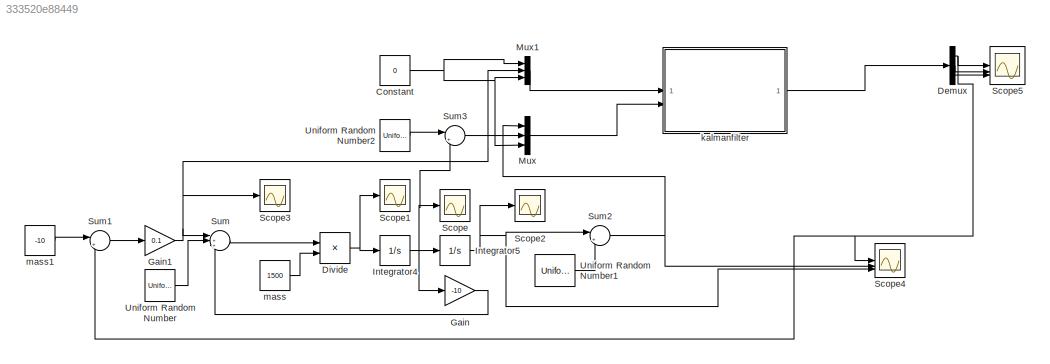
MODEL slx_333520e88449
KIND model
CONFIG AbsTol = auto
CONFIG EnableMultiTasking = off
CONFIG FixedStep = auto
CONFIG MaxStep = auto
CONFIG MinStep = auto
CONFIG RelTol = 1e-3
CONFIG SampleTimeConstraint = Unconstrained
CONFIG SolverName = VariableStepAuto
CONFIG StartTime = 0.0
CONFIG StopTime = 1000.0
BLOCK [Constant] Constant
  Value = 0
BLOCK [Demux] Demux
  Outputs = 3
BLOCK [Product] Divide
  Inputs = */
BLOCK [Gain] Gain
  Gain = -10
BLOCK [Gain] Gain1
  Gain = 0.1
BLOCK [Integrator] Integrator4
  InitialCondition = 0.2
BLOCK [Integrator] Integrator5
BLOCK [Mux] Mux
  DisplayOption = bar
  Inputs = 3
BLOCK [Mux] Mux1
  DisplayOption = bar
  Inputs = 3
BLOCK [Scope] Scope
  Floating = off
  NumInputPorts = 1
  ScopeSpecificationString = Simulink.scopes.TimeScopeBlockCfg('CurrentConfiguration', extmgr.ConfigurationSet(extmgr.Configuration('Core','General UI',true),extmgr.Configuration('Core','Source UI',true),extmgr.Configuration('Sources','WiredSimulink',true),extmgr.Configuration('Visuals','Time Domain',true,'SerializedDisplays',{struct('MinYLimReal','-0.06001','MaxYLimReal','0.02205','YLabelReal','','MinYLimMag','0.00000','MaxY...<+1483ch>
BLOCK [Scope] Scope1
  Floating = off
  NumInputPorts = 1
  ScopeSpecificationString = Simulink.scopes.TimeScopeBlockCfg('CurrentConfiguration', extmgr.ConfigurationSet(extmgr.Configuration('Core','General UI',true),extmgr.Configuration('Core','Source UI',true),extmgr.Configuration('Sources','WiredSimulink',true,'DataLoggingVariableName','ScopeData1'),extmgr.Configuration('Visuals','Time Domain',true,'SerializedDisplays',{struct('MinYLimReal','-0.00375','MaxYLimReal','0.00041','YLab...<+1483ch>
BLOCK [Scope] Scope2
  Floating = off
  NumInputPorts = 1
  ScopeSpecificationString = Simulink.scopes.TimeScopeBlockCfg('CurrentConfiguration', extmgr.ConfigurationSet(extmgr.Configuration('Core','General UI',true),extmgr.Configuration('Core','Source UI',true),extmgr.Configuration('Sources','WiredSimulink',true,'DataLoggingVariableName','ScopeData2'),extmgr.Configuration('Visuals','Time Domain',true,'SerializedDisplays',{struct('MinYLimReal','-9.36307','MaxYLimReal','84.26762','YLa...<+1492ch>
BLOCK [Scope] Scope3
  Floating = off
  NumInputPorts = 1
  ScopeSpecificationString = Simulink.scopes.TimeScopeBlockCfg('CurrentConfiguration', extmgr.ConfigurationSet(extmgr.Configuration('Core','General UI',true),extmgr.Configuration('Core','Source UI',true),extmgr.Configuration('Sources','WiredSimulink',true,'DataLoggingVariableName','ScopeData3'),extmgr.Configuration('Visuals','Time Domain',true,'SerializedDisplays',{struct('MinYLimReal','-1.38774','MaxYLimReal','0.65791','YLab...<+1504ch>
BLOCK [Scope] Scope4
  Floating = off
  NumInputPorts = 3
  ScopeSpecificationString = Simulink.scopes.TimeScopeBlockCfg('CurrentConfiguration', extmgr.ConfigurationSet(extmgr.Configuration('Core','General UI',true),extmgr.Configuration('Core','Source UI',true),extmgr.Configuration('Sources','WiredSimulink',true,'DataLoggingVariableName','ScopeData4'),extmgr.Configuration('Visuals','Time Domain',true,'SerializedDisplays',{struct('MinYLimReal','-21.43023','MaxYLimReal','15.86691','YL...<+1531ch>
BLOCK [Scope] Scope5
  Floating = off
  NumInputPorts = 3
  ScopeSpecificationString = Simulink.scopes.TimeScopeBlockCfg('CurrentConfiguration', extmgr.ConfigurationSet(extmgr.Configuration('Core','General UI',true),extmgr.Configuration('Core','Source UI',true),extmgr.Configuration('Sources','WiredSimulink',true,'DataLoggingVariableName','ScopeData1'),extmgr.Configuration('Visuals','Time Domain',true,'SerializedDisplays',{struct('MinYLimReal','-101.99626','MaxYLimReal','755.00195','...<+1852ch>
BLOCK [Sum] Sum
  Inputs = |+++
BLOCK [Sum] Sum1
  Inputs = |+-
BLOCK [Sum] Sum2
  Inputs = |+-
BLOCK [Sum] Sum3
  Inputs = |+-
BLOCK [UniformRandomNumber] Uniform Random Number
  SampleTime = 1
  Seed = 1
BLOCK [UniformRandomNumber] Uniform Random Number1
  Maximum = 2
  Minimum = -2
  SampleTime = 1
  Seed = 1
BLOCK [UniformRandomNumber] Uniform Random Number2
  SampleTime = 1
  Seed = 1
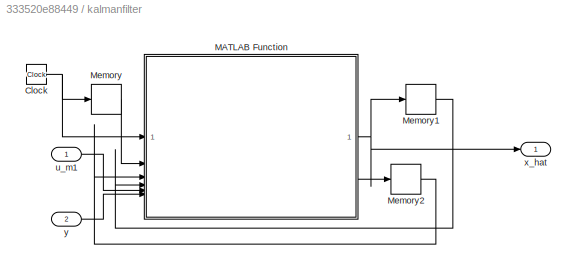
BLOCK [SubSystem] kalmanfilter
BLOCK [Clock] kalmanfilter/Clock
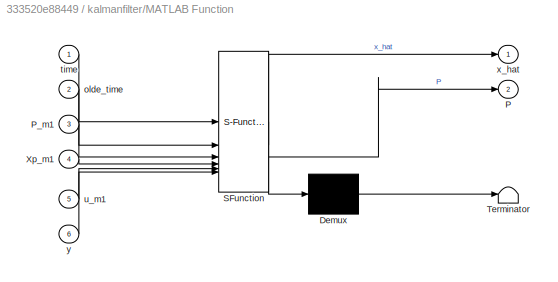
BLOCK [SubSystem] kalmanfilter/MATLAB Function
  ErrorFcn = Stateflow.Translate.translate
  PermitHierarchicalResolution = ExplicitOnly
  SFBlockType = MATLAB Function
  TreatAsAtomicUnit = on
BLOCK [Demux] kalmanfilter/MATLAB Function/ Demux 
  Outputs = 1
BLOCK [S-Function] kalmanfilter/MATLAB Function/ SFunction 
  EnableBusSupport = on
  FunctionName = sf_sfun
  PortCounts = [6 3]
  SFcnIsStateOwnerBlock = off
  SFunctionDeploymentMode = off
  Tag = Stateflow S-Function 2
BLOCK [Terminator] kalmanfilter/MATLAB Function/ Terminator 
BLOCK [Outport] kalmanfilter/MATLAB Function/P
  Port = 2
BLOCK [Inport] kalmanfilter/MATLAB Function/P_m1
  Port = 3
BLOCK [Inport] kalmanfilter/MATLAB Function/Xp_m1
  Port = 4
BLOCK [Inport] kalmanfilter/MATLAB Function/olde_time
  Port = 2
BLOCK [Inport] kalmanfilter/MATLAB Function/time
BLOCK [Inport] kalmanfilter/MATLAB Function/u_m1
  Port = 5
BLOCK [Outport] kalmanfilter/MATLAB Function/x_hat
BLOCK [Inport] kalmanfilter/MATLAB Function/y
  Port = 6
BLOCK [Memory] kalmanfilter/Memory
BLOCK [Memory] kalmanfilter/Memory1
  InitialCondition = [0; 0.5; 0]
BLOCK [Memory] kalmanfilter/Memory2
  InitialCondition = eye(3) * 1e-3
BLOCK [Inport] kalmanfilter/u_m1
BLOCK [Outport] kalmanfilter/x_hat
BLOCK [Inport] kalmanfilter/y
  Port = 2
BLOCK [Constant] mass
  Value = 1500
BLOCK [Constant] mass1
  Value = -10
NET Constant:1 -> Mux1:1, Mux1:3, Mux:3
NET Demux:1 -> Scope4:1, Scope5:1, Sum1:2
LINE Demux:2 -> Scope5:2
LINE Demux:3 -> Scope5:3
NET Divide:1 -> Integrator4:1, Scope1:1
NET Gain1:1 -> Mux1:2, Scope3:1, Sum:1
LINE Gain:1 -> Sum:3
NET Integrator4:1 -> Gain:1, Integrator5:1, Scope:1, Sum3:2
NET Integrator5:1 -> Scope2:1, Scope4:3, Sum2:1
LINE Mux1:1 -> kalmanfilter:1
LINE Mux:1 -> kalmanfilter:2
LINE Sum1:1 -> Gain1:1
NET Sum2:1 -> Mux:1, Scope4:2
LINE Sum3:1 -> Mux:2
LINE Sum:1 -> Divide:1
LINE Uniform Random Number1:1 -> Sum2:2
LINE Uniform Random Number2:1 -> Sum3:1
LINE Uniform Random Number:1 -> Sum:2
NET kalmanfilter/Clock:1 -> kalmanfilter/MATLAB Function:1, kalmanfilter/Memory:1
NET kalmanfilter/MATLAB Function:1 -> kalmanfilter/Memory1:1, kalmanfilter/x_hat:1
LINE kalmanfilter/MATLAB Function:2 -> kalmanfilter/Memory2:1
LINE kalmanfilter/Memory1:1 -> kalmanfilter/MATLAB Function:4
LINE kalmanfilter/Memory2:1 -> kalmanfilter/MATLAB Function:3
LINE kalmanfilter/Memory:1 -> kalmanfilter/MATLAB Function:2
LINE kalmanfilter/u_m1:1 -> kalmanfilter/MATLAB Function:5
LINE kalmanfilter/y:1 -> kalmanfilter/MATLAB Function:6
LINE kalmanfilter:1 -> Demux:1
LINE mass1:1 -> Sum1:1
LINE mass:1 -> Divide:2
note: NET lines group one-source signal fan-out (src -> all destinations, sorted); 1:1 wires keep LINE
CHART kalmanfilter/MATLAB Function states=1 transitions=1
  STATE_LABEL 'eML_blk_kernel()'
  STATE_LABEL 'SCRIPT:\nfunction [x_hat,P] = extended_kalman_filter_sim(time, olde_time, P_m1, Xp_m1, u_m1, y)\n    td = time - olde_time;\n    m = 1500; b = 0;\n    Q_m1 = diag([1e-5, 1e-5, 1e-1]);\n    %-----HS changed process noise for damping to allow faster changes ---\n    %\n    R =1*diag([1e-3, 1e-4, 1e-3]);\n    \n    h = @(xp_m1) [xp_m1(1); 0; 0];\n\n    f = @(xp_m1, u_m1) xp_m1 + [0, 1, 0 ;0, b/m-xp_m1(3)/m, 0; ...<+861ch>'
CHART  states=0 transitions=0
